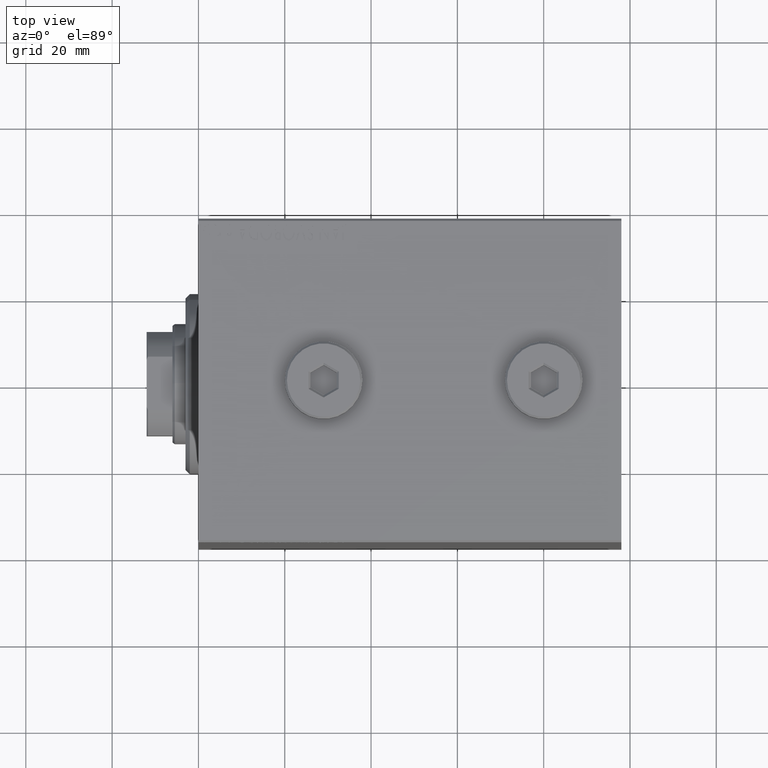
[diagram: clean part render]
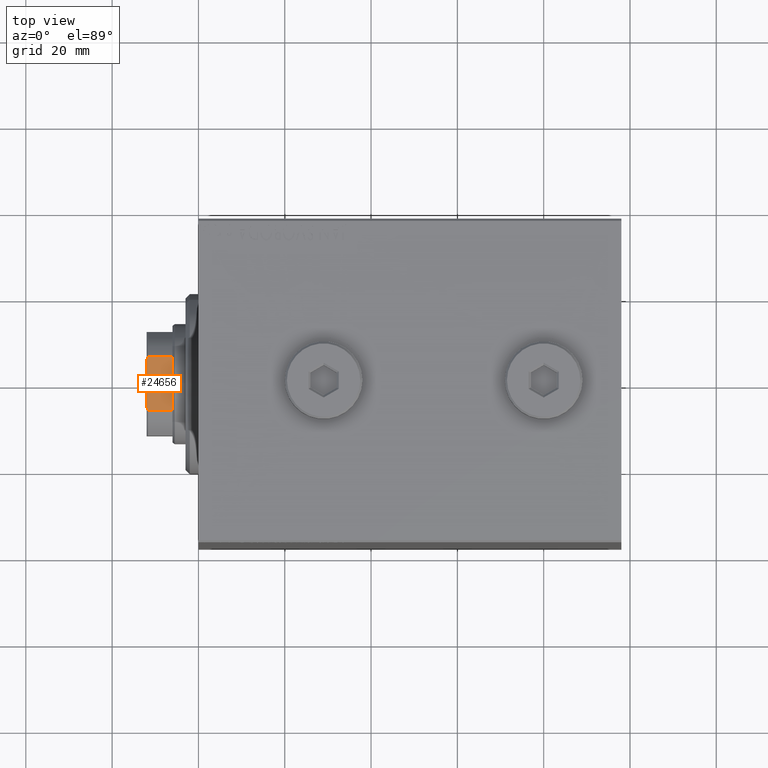
[diagram: same view with one face highlighted and labeled with its STEP entity id]
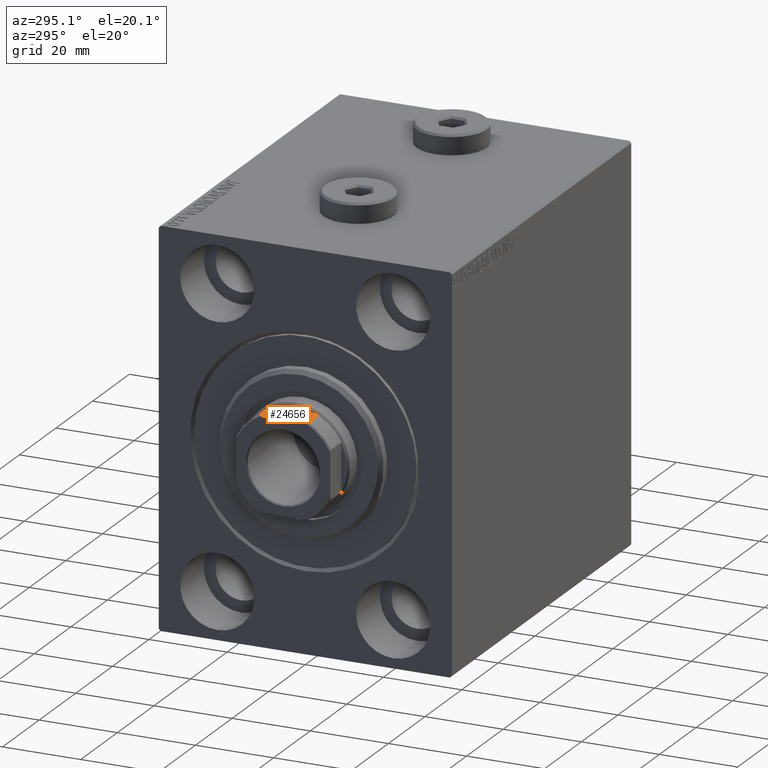
[diagram: same view with one face highlighted and labeled with its STEP entity id]
A machine part, top view. The second image highlights one B-rep face of the part: STEP entity #24656.
A second angle (auxiliary view) of the same face is appended — the face is thin or edge-on in the first view.
In plain terms, the highlighted planar face has unit normal (-0, -0, -1).
Its self-contained STEP definition (entity closure, byte-faithful):
#1103 = EDGE_CURVE ( 'NONE', #42633, #17625, #39359, .T. ) ;
#1277 = CARTESIAN_POINT ( 'NONE',  ( 11.99999999999999645, 5.499090833947039236, 96.00000000000000000 ) ) ;
#1608 = ORIENTED_EDGE ( 'NONE', *, *, #12322, .T. ) ;
#1792 = CARTESIAN_POINT ( 'NONE',  ( 11.99999999999999645, 6.184658438426501093, -0.001000000000001000089 ) ) ;
#2241 = DIRECTION ( 'NONE',  ( -0.000000000000000000, -0.000000000000000000, 1.000000000000000000 ) ) ;
#4190 = VECTOR ( 'NONE', #18270, 1000.000000000000000 ) ;
#5668 = LINE ( 'NONE', #1792, #6757 ) ;
#5685 = ORIENTED_EDGE ( 'NONE', *, *, #42063, .T. ) ;
#6757 = VECTOR ( 'NONE', #2241, 1000.000000000000000 ) ;
#7364 = B_SPLINE_CURVE_WITH_KNOTS ( 'NONE', 3,
 ( #14802, #18701, #8169, #1277 ),
 .UNSPECIFIED., .F., .F.,
 ( 4, 4 ),
 ( 0.000000000000000000, 0.0007483334419306103850 ),
 .UNSPECIFIED. ) ;
#7394 = CARTESIAN_POINT ( 'NONE',  ( 11.99999999999999645, 11.99999999999999645, 96.00000000000000000 ) ) ;
#7619 = FACE_OUTER_BOUND ( 'NONE', #23989, .T. ) ;
#7724 = VECTOR ( 'NONE', #20902, 1000.000000000000000 ) ;
#7729 = CARTESIAN_POINT ( 'NONE',  ( 11.99999999999999645, 11.99999999999999645, 96.00000000000000000 ) ) ;
#8169 = CARTESIAN_POINT ( 'NONE',  ( 11.99999999999999822, 5.729389212963461375, 95.90405820415740834 ) ) ;
#12322 = EDGE_CURVE ( 'NONE', #31732, #41421, #36862, .T. ) ;
#14252 = DIRECTION ( 'NONE',  ( 2.168404344971008868E-16, -1.000000000000000000, 0.000000000000000000 ) ) ;
#14802 = CARTESIAN_POINT ( 'NONE',  ( 11.99999999999999645, 6.184658438426501093, 95.69999999999998863 ) ) ;
#15965 = ORIENTED_EDGE ( 'NONE', *, *, #24578, .F. ) ;
#15979 = CARTESIAN_POINT ( 'NONE',  ( 12.00000000000000000, -5.499090833947034795, 96.00000000000000000 ) ) ;
#16208 = CARTESIAN_POINT ( 'NONE',  ( 12.00000000000000000, -5.957846001622726817, 95.80390795934953019 ) ) ;
#16943 = CARTESIAN_POINT ( 'NONE',  ( 12.00000000000000000, -5.499090833947034795, 96.00000000000000000 ) ) ;
#17625 = VERTEX_POINT ( 'NONE', #37081 ) ;
#18196 = ORIENTED_EDGE ( 'NONE', *, *, #41290, .T. ) ;
#18270 = DIRECTION ( 'NONE',  ( -2.168404344971008868E-16, 1.000000000000000000, -0.000000000000000000 ) ) ;
#18701 = CARTESIAN_POINT ( 'NONE',  ( 11.99999999999999645, 5.957846001622727705, 95.80390795934953019 ) ) ;
#18725 = AXIS2_PLACEMENT_3D ( 'NONE', #7394, #24813, #14252 ) ;
#19438 = DIRECTION ( 'NONE',  ( -2.168404344971008868E-16, 1.000000000000000000, -0.000000000000000000 ) ) ;
#20095 = VERTEX_POINT ( 'NONE', #43342 ) ;
#20418 = B_SPLINE_CURVE_WITH_KNOTS ( 'NONE', 3,
 ( #15979, #29986, #16208, #26750 ),
 .UNSPECIFIED., .F., .F.,
 ( 4, 4 ),
 ( 8.673617379884034509E-19, 0.0007483334419306152639 ),
 .UNSPECIFIED. ) ;
#20902 = DIRECTION ( 'NONE',  ( -0.000000000000000000, -0.000000000000000000, 1.000000000000000000 ) ) ;
#21379 = PLANE ( 'NONE',  #18725 ) ;
#23989 = EDGE_LOOP ( 'NONE', ( #37355, #18196, #38327, #5685, #15965, #1608 ) ) ;
#24578 = EDGE_CURVE ( 'NONE', #31732, #20095, #34895, .T. ) ;
#24656 = ADVANCED_FACE ( 'NONE', ( #7619 ), #21379, .F. ) ;
#24813 = DIRECTION ( 'NONE',  ( -1.000000000000000000, -2.168404344971008868E-16, 0.000000000000000000 ) ) ;
#26750 = CARTESIAN_POINT ( 'NONE',  ( 11.99999999999999645, -6.184658438426501981, 95.69999999999998863 ) ) ;
#27368 = CARTESIAN_POINT ( 'NONE',  ( 11.99999999999999645, 6.184658438426501093, 89.99999999999998579 ) ) ;
#28532 = CARTESIAN_POINT ( 'NONE',  ( 11.99999999999999645, 6.184658438426501093, 95.69999999999998863 ) ) ;
#29986 = CARTESIAN_POINT ( 'NONE',  ( 11.99999999999999822, -5.729389212963460487, 95.90405820415740834 ) ) ;
#30789 = CARTESIAN_POINT ( 'NONE',  ( 11.99999999999999645, -6.184658438426501981, -0.001000000000001000089 ) ) ;
#31578 = VERTEX_POINT ( 'NONE', #28532 ) ;
#31732 = VERTEX_POINT ( 'NONE', #39987 ) ;
#34895 = LINE ( 'NONE', #30789, #7724 ) ;
#36612 = VECTOR ( 'NONE', #19438, 1000.000000000000000 ) ;
#36862 = LINE ( 'NONE', #40520, #36612 ) ;
#37081 = CARTESIAN_POINT ( 'NONE',  ( 11.99999999999999645, 5.499090833947039236, 96.00000000000000000 ) ) ;
#37355 = ORIENTED_EDGE ( 'NONE', *, *, #42759, .T. ) ;
#38327 = ORIENTED_EDGE ( 'NONE', *, *, #1103, .F. ) ;
#39359 = LINE ( 'NONE', #7729, #4190 ) ;
#39987 = CARTESIAN_POINT ( 'NONE',  ( 11.99999999999999645, -6.184658438426501981, 89.99999999999998579 ) ) ;
#40520 = CARTESIAN_POINT ( 'NONE',  ( 11.99999999999999645, 11.99999999999999645, 90.00000000000000000 ) ) ;
#41290 = EDGE_CURVE ( 'NONE', #31578, #17625, #7364, .T. ) ;
#41421 = VERTEX_POINT ( 'NONE', #27368 ) ;
#42063 = EDGE_CURVE ( 'NONE', #42633, #20095, #20418, .T. ) ;
#42633 = VERTEX_POINT ( 'NONE', #16943 ) ;
#42759 = EDGE_CURVE ( 'NONE', #41421, #31578, #5668, .T. ) ;
#43342 = CARTESIAN_POINT ( 'NONE',  ( 11.99999999999999645, -6.184658438426501981, 95.69999999999998863 ) ) ;